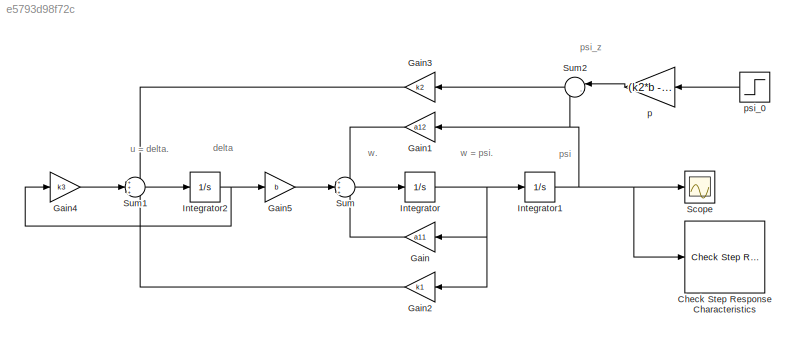
MODEL slx_e5793d98f72c
KIND model
CONFIG AbsTol = auto
CONFIG EnableMultiTasking = off
CONFIG FixedStep = auto
CONFIG MaxStep = auto
CONFIG MinStep = auto
CONFIG RelTol = 1e-3
CONFIG SampleTimeConstraint = Unconstrained
CONFIG SolverName = VariableStepAuto
CONFIG StartTime = 0.0
CONFIG StopTime = 50
BLOCK [Reference] Check Step Response Characteristics  REF=checkpacklib/Check Step Response 
Characteristics
  InstantiateOnLoad = on
  Ports = [1]
  SourceBlock = checkpacklib/Check Step Response \nCharacteristics
  SourceProductBaseCode = CT,ID,MT,SO
  SourceType = Checks_StepResponse
BLOCK [Gain] Gain
  Gain = a11
  NameLocation = top
BLOCK [Gain] Gain1
  Gain = a12
  NameLocation = top
BLOCK [Gain] Gain2
  Gain = k1
  NameLocation = top
BLOCK [Gain] Gain3
  Gain = k2
  NameLocation = top
BLOCK [Gain] Gain4
  Gain = k3
BLOCK [Gain] Gain5
  Gain = b
BLOCK [Integrator] Integrator
  Ports = [1, 1]
BLOCK [Integrator] Integrator1
  Ports = [1, 1]
BLOCK [Integrator] Integrator2
  Ports = [1, 1]
BLOCK [Scope] Scope
  Floating = off
  NumInputPorts = 1
  Ports = [1]
  ScopeSpecificationString = Simulink.scopes.TimeScopeBlockCfg('CurrentConfiguration', extmgr.ConfigurationSet(extmgr.Configuration('Core','General UI',true),extmgr.Configuration('Core','Source UI',true),extmgr.Configuration('Sources','WiredSimulink',true),extmgr.Configuration('Visuals','Time Domain',true,'SerializedDisplays',{struct('MinYLimReal','-0.12556','MaxYLimReal','1.13002','YLabelReal','','MinYLimMag','0.00000','MaxY...<+1393ch>
BLOCK [Sum] Sum
  Inputs = +++
  Ports = [3, 1]
BLOCK [Sum] Sum1
  Inputs = +++
  Ports = [3, 1]
BLOCK [Sum] Sum2
  Inputs = |-+
  NameLocation = top
  Ports = [2, 1]
BLOCK [Gain] p
  Gain = (k2*b - a12*k3) / (k2*b)
  NameLocation = top
BLOCK [Step] psi_0
  NameLocation = top
  SampleTime = 0
  Time = 0
ANNOTATION (root): delta
ANNOTATION (root): psi
ANNOTATION (root): psi_z
ANNOTATION (root): u = delta.
ANNOTATION (root): w = psi.
ANNOTATION (root): w.
LINE Gain1:1 -> Sum:1
LINE Gain2:1 -> Sum1:3
LINE Gain3:1 -> Sum1:1
LINE Gain4:1 -> Sum1:2
LINE Gain5:1 -> Sum:2
LINE Gain:1 -> Sum:3
NET Integrator1:1 -> Check Step Response Characteristics:1, Gain1:1, Scope:1, Sum2:2
NET Integrator2:1 -> Gain4:1, Gain5:1
NET Integrator:1 -> Gain2:1, Gain:1, Integrator1:1
LINE Sum1:1 -> Integrator2:1
LINE Sum2:1 -> Gain3:1
LINE Sum:1 -> Integrator:1
LINE p:1 -> Sum2:1
LINE psi_0:1 -> p:1
note: NET lines group one-source signal fan-out (src -> all destinations, sorted); 1:1 wires keep LINE
